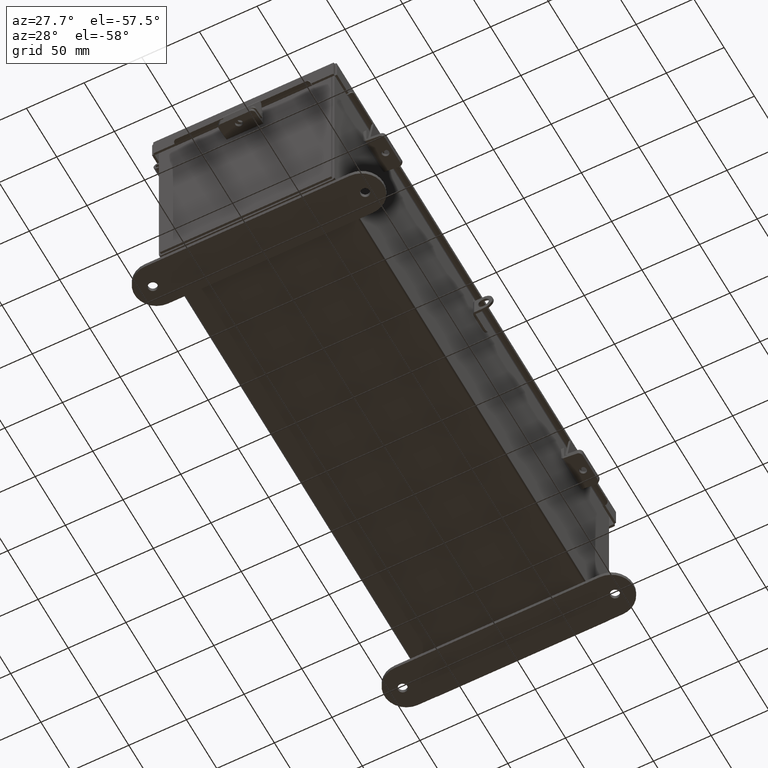
[diagram: clean part render]
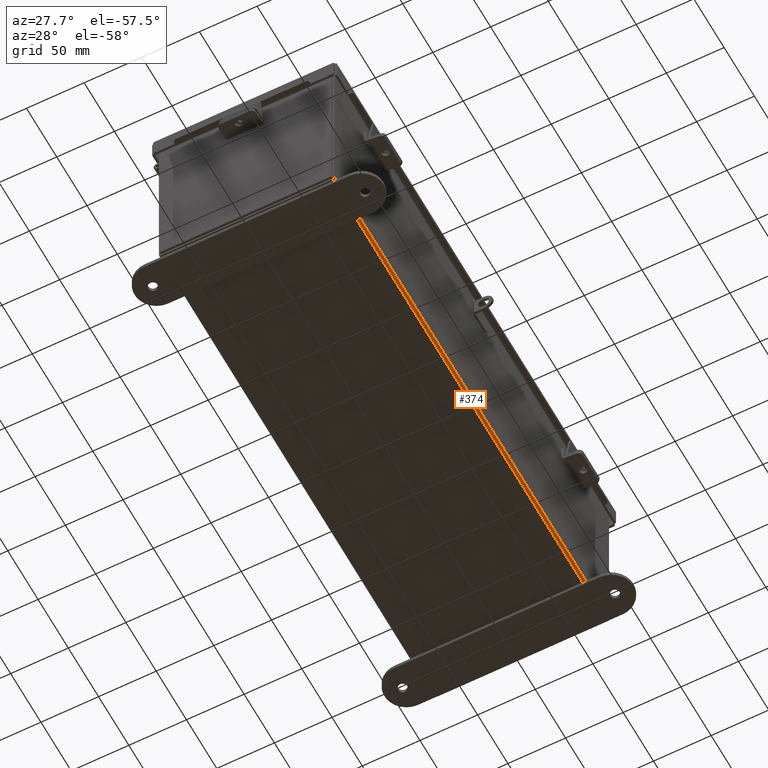
[diagram: same view with one face highlighted and labeled with its STEP entity id]
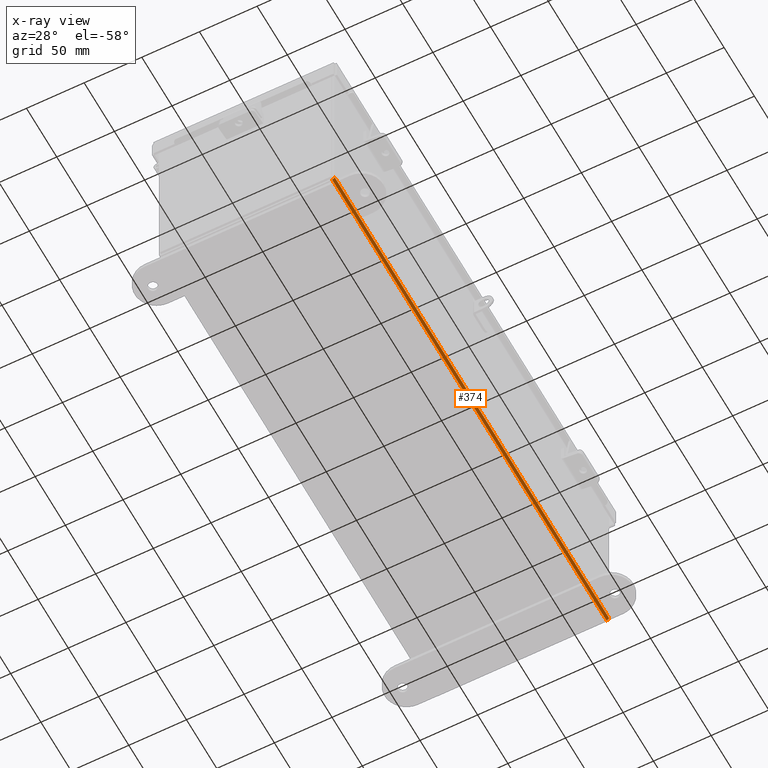
[diagram: x-ray of the same camera — body ghosted, the highlighted face saturated]
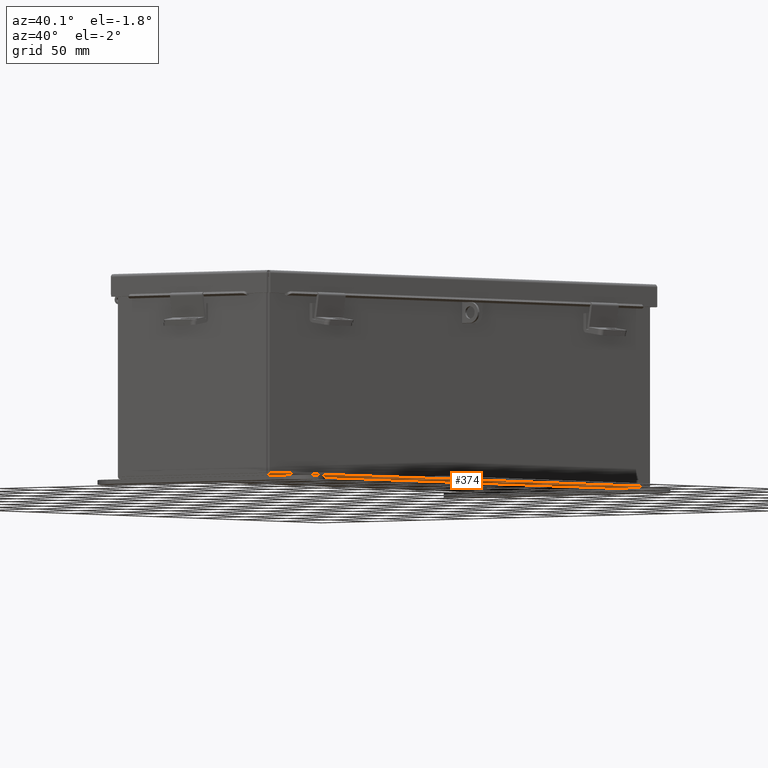
[diagram: same view with one face highlighted and labeled with its STEP entity id]
A machine part, auxiliary view. The second image highlights one B-rep face of the part: STEP entity #374.
The next image is the same camera in x-ray: the body ghosted, the highlighted face saturated — about 0% of this face is hidden behind the body in this view.
A second angle (auxiliary view) of the same face is appended — the face is thin or edge-on in the first view.
In plain terms, the highlighted cylindrical surface (edge-blend (fillet) strip) has radius 2.2276 mm, axis along (0, 1, 0).
Its self-contained STEP definition (entity closure, byte-faithful):
#374 = ADVANCED_FACE ( 'NONE', ( #12049 ), #7645, .T. ) ;
#1150 = VECTOR ( 'NONE', #10063, 39.37007874015748100 ) ;
#1244 = CARTESIAN_POINT ( 'NONE',  ( 3.000000000000001800, -8.925300000000001800, 0.01299999999999984300 ) ) ;
#1616 = LINE ( 'NONE', #1244, #1150 ) ;
#1626 = ORIENTED_EDGE ( 'NONE', *, *, #2233, .F. ) ;
#2076 = EDGE_CURVE ( 'NONE', #7806, #16326, #9469, .T. ) ;
#2233 = EDGE_CURVE ( 'NONE', #12558, #7806, #3307, .T. ) ;
#2414 = CARTESIAN_POINT ( 'NONE',  ( 2.912300000000001400, 8.925299999999998200, -0.07469999999999994700 ) ) ;
#3307 = LINE ( 'NONE', #12837, #15028 ) ;
#3781 = DIRECTION ( 'NONE',  ( -0.0000000000000000000, -1.000000000000000000, -0.0000000000000000000 ) ) ;
#4306 = CARTESIAN_POINT ( 'NONE',  ( 3.000000000000001800, -8.925300000000001800, 0.01299999999999984300 ) ) ;
#4853 = AXIS2_PLACEMENT_3D ( 'NONE', #16542, #9200, #15002 ) ;
#4958 = CARTESIAN_POINT ( 'NONE',  ( 2.912300000000001400, 8.925299999999998200, 0.01300000000000015000 ) ) ;
#5790 = CARTESIAN_POINT ( 'NONE',  ( 3.000000000000001800, 8.925300000000000000, 0.01299999999999984300 ) ) ;
#6430 = DIRECTION ( 'NONE',  ( 0.0000000000000000000, 0.0000000000000000000, 1.000000000000000000 ) ) ;
#7563 = ORIENTED_EDGE ( 'NONE', *, *, #9310, .F. ) ;
#7645 = CYLINDRICAL_SURFACE ( 'NONE', #4853, 0.08770000000000026400 ) ;
#7806 = VERTEX_POINT ( 'NONE', #14388 ) ;
#9200 = DIRECTION ( 'NONE',  ( 0.0000000000000000000, 1.000000000000000000, 0.0000000000000000000 ) ) ;
#9310 = EDGE_CURVE ( 'NONE', #18109, #12558, #16096, .T. ) ;
#9469 = CIRCLE ( 'NONE', #13517, 0.08770000000000009700 ) ;
#9538 = ORIENTED_EDGE ( 'NONE', *, *, #2076, .F. ) ;
#10063 = DIRECTION ( 'NONE',  ( -0.0000000000000000000, -1.000000000000000000, -0.0000000000000000000 ) ) ;
#12049 = FACE_OUTER_BOUND ( 'NONE', #12656, .T. ) ;
#12558 = VERTEX_POINT ( 'NONE', #2414 ) ;
#12571 = CARTESIAN_POINT ( 'NONE',  ( 2.912300000000001400, -8.925300000000001800, 0.01300000000000015000 ) ) ;
#12656 = EDGE_LOOP ( 'NONE', ( #1626, #7563, #18719, #9538 ) ) ;
#12837 = CARTESIAN_POINT ( 'NONE',  ( 2.912300000000001400, 8.925300000000001800, -0.07469999999999994700 ) ) ;
#13517 = AXIS2_PLACEMENT_3D ( 'NONE', #12571, #3781, #14073 ) ;
#14073 = DIRECTION ( 'NONE',  ( 0.0000000000000000000, 0.0000000000000000000, 1.000000000000000000 ) ) ;
#14261 = DIRECTION ( 'NONE',  ( -0.0000000000000000000, -1.000000000000000000, -0.0000000000000000000 ) ) ;
#14388 = CARTESIAN_POINT ( 'NONE',  ( 2.912300000000001400, -8.925300000000001800, -0.07470000000000000300 ) ) ;
#15002 = DIRECTION ( 'NONE',  ( 1.000000000000000000, 0.0000000000000000000, -3.455694262224952200E-015 ) ) ;
#15028 = VECTOR ( 'NONE', #14261, 39.37007874015748100 ) ;
#15232 = DIRECTION ( 'NONE',  ( 0.0000000000000000000, 1.000000000000000000, 0.0000000000000000000 ) ) ;
#16096 = CIRCLE ( 'NONE', #18964, 0.08770000000000009700 ) ;
#16274 = EDGE_CURVE ( 'NONE', #18109, #16326, #1616, .T. ) ;
#16326 = VERTEX_POINT ( 'NONE', #4306 ) ;
#16542 = CARTESIAN_POINT ( 'NONE',  ( 2.912300000000001400, 8.925300000000001800, 0.01300000000000015000 ) ) ;
#18109 = VERTEX_POINT ( 'NONE', #5790 ) ;
#18719 = ORIENTED_EDGE ( 'NONE', *, *, #16274, .T. ) ;
#18964 = AXIS2_PLACEMENT_3D ( 'NONE', #4958, #15232, #6430 ) ;